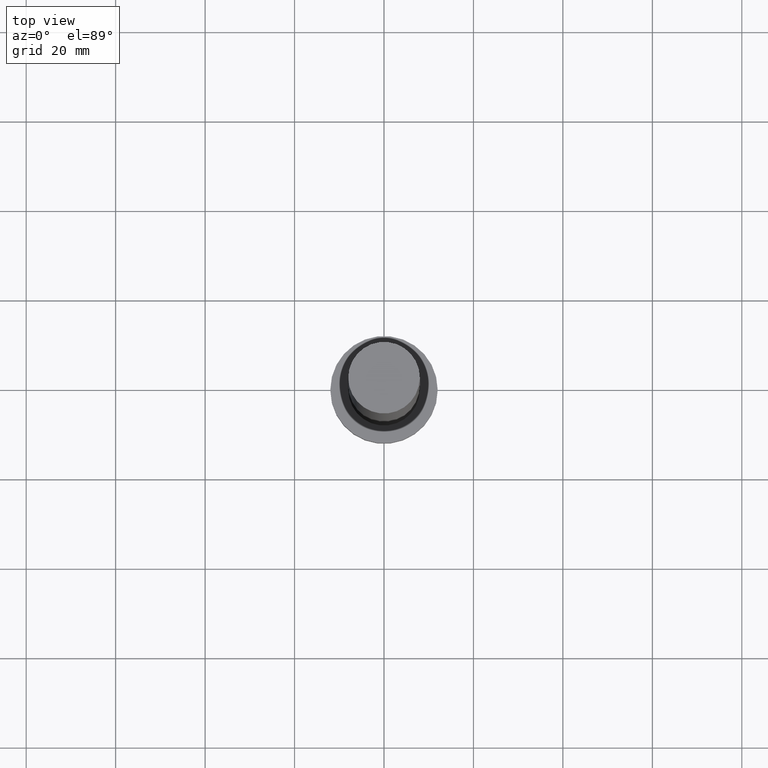
[diagram: clean part render]
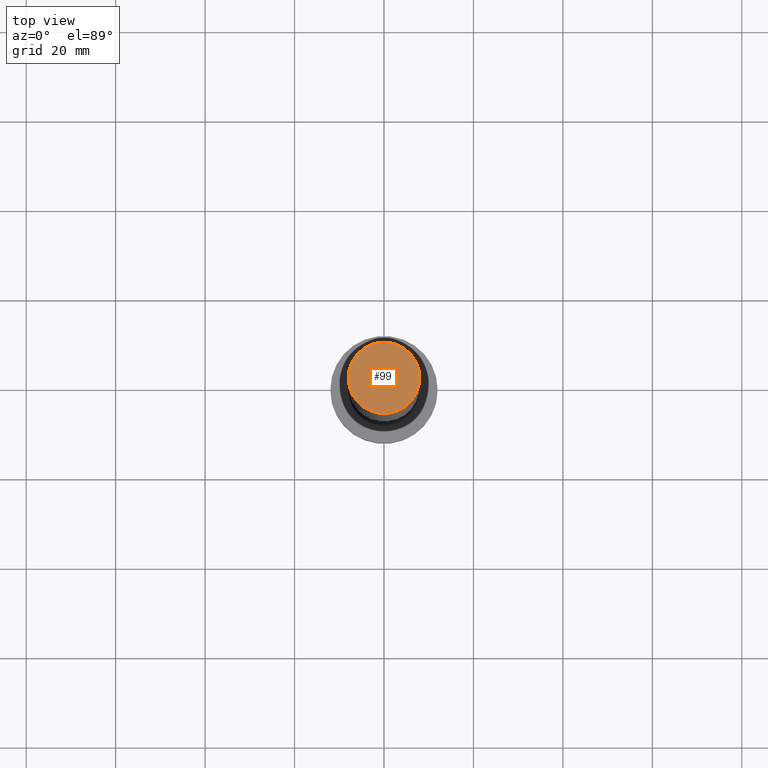
[diagram: same view with one face highlighted and labeled with its STEP entity id]
A machine part, top view. The second image highlights one B-rep face of the part: STEP entity #99.
In plain terms, the highlighted planar face has unit normal (0, 0, 1).
Its self-contained STEP definition (entity closure, byte-faithful):
#1 = DIRECTION ( 'NONE',  ( 0.000000000000000000, 0.000000000000000000, 1.000000000000000000 ) ) ;
#18 = DIRECTION ( 'NONE',  ( 1.000000000000000000, 0.000000000000000000, 0.000000000000000000 ) ) ;
#22 = FACE_OUTER_BOUND ( 'NONE', #208, .T. ) ;
#34 = CARTESIAN_POINT ( 'NONE',  ( 0.000000000000000000, 0.000000000000000000, 160.0000000000000000 ) ) ;
#51 = VERTEX_POINT ( 'NONE', #77 ) ;
#57 = EDGE_CURVE ( 'NONE', #183, #51, #202, .T. ) ;
#58 = DIRECTION ( 'NONE',  ( 0.000000000000000000, 0.000000000000000000, 1.000000000000000000 ) ) ;
#77 = CARTESIAN_POINT ( 'NONE',  ( 8.000000000000000000, 9.797174393178825657E-16, 160.0000000000000000 ) ) ;
#92 = AXIS2_PLACEMENT_3D ( 'NONE', #34, #1, #160 ) ;
#99 = ADVANCED_FACE ( 'NONE', ( #22 ), #193, .T. ) ;
#102 = CIRCLE ( 'NONE', #233, 8.000000000000000000 ) ;
#121 = DIRECTION ( 'NONE',  ( 0.000000000000000000, 0.000000000000000000, 1.000000000000000000 ) ) ;
#136 = CARTESIAN_POINT ( 'NONE',  ( 0.000000000000000000, 0.000000000000000000, 160.0000000000000000 ) ) ;
#158 = CARTESIAN_POINT ( 'NONE',  ( -8.000000000000000000, 0.000000000000000000, 160.0000000000000000 ) ) ;
#160 = DIRECTION ( 'NONE',  ( 1.000000000000000000, 0.000000000000000000, 0.000000000000000000 ) ) ;
#176 = CARTESIAN_POINT ( 'NONE',  ( 0.000000000000000000, 0.000000000000000000, 160.0000000000000000 ) ) ;
#183 = VERTEX_POINT ( 'NONE', #158 ) ;
#189 = DIRECTION ( 'NONE',  ( 1.000000000000000000, 0.000000000000000000, -0.000000000000000000 ) ) ;
#192 = EDGE_CURVE ( 'NONE', #51, #183, #102, .T. ) ;
#193 = PLANE ( 'NONE',  #196 ) ;
#196 = AXIS2_PLACEMENT_3D ( 'NONE', #136, #121, #189 ) ;
#202 = CIRCLE ( 'NONE', #92, 8.000000000000000000 ) ;
#205 = ORIENTED_EDGE ( 'NONE', *, *, #192, .T. ) ;
#208 = EDGE_LOOP ( 'NONE', ( #231, #205 ) ) ;
#231 = ORIENTED_EDGE ( 'NONE', *, *, #57, .T. ) ;
#233 = AXIS2_PLACEMENT_3D ( 'NONE', #176, #58, #18 ) ;